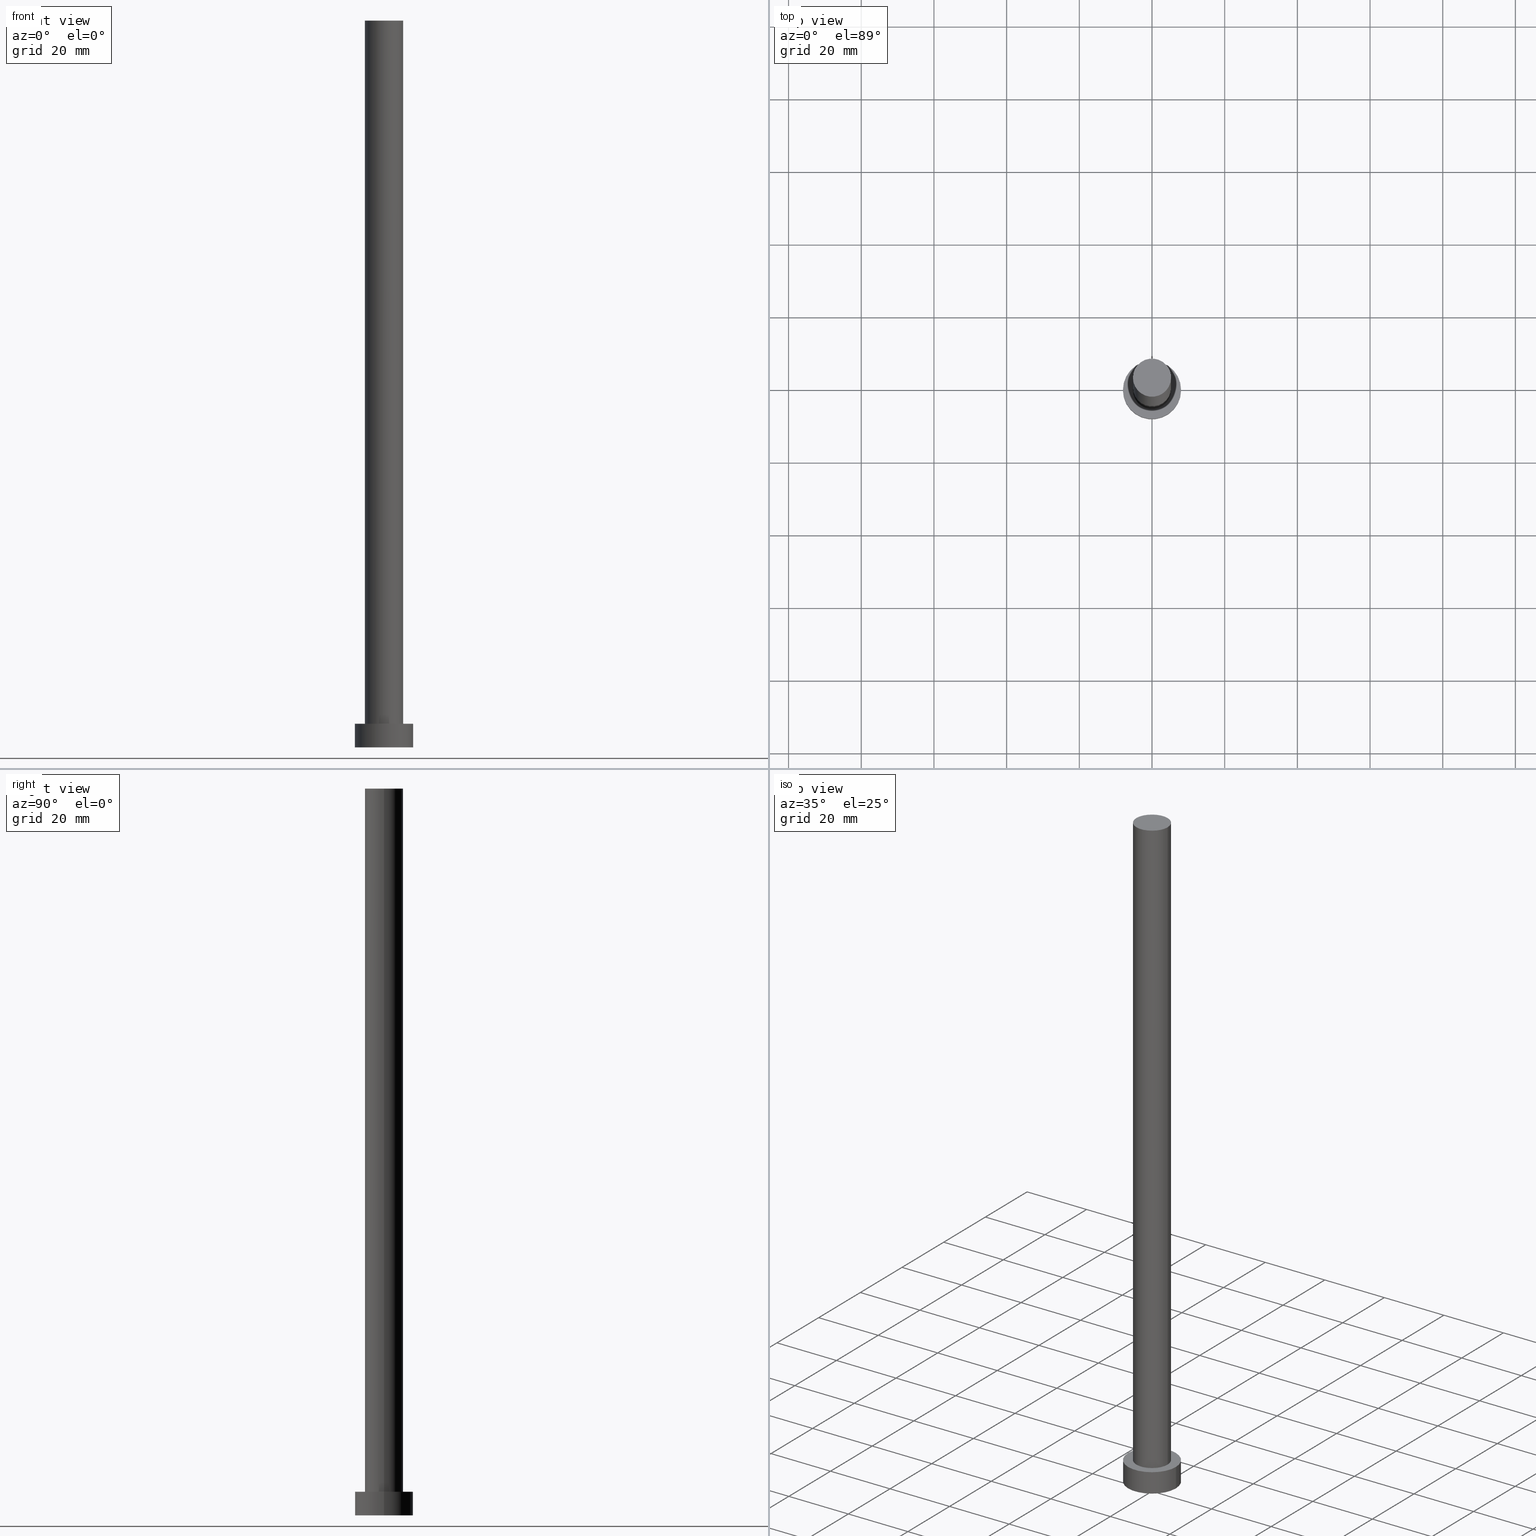
[diagram: canonical four-view strip — front | top / right | iso, engineering-drawing reading convention]
A machine part, canonical four-view strip (front | top / right | iso — engineering-drawing reading convention). The complete STEP part file that produces these views, byte-faithful:
ISO-10303-21;
HEADER;
FILE_DESCRIPTION (( 'STEP AP203' ),
    '1' );
FILE_NAME ('9a54.STEP',
    '2023-02-13T12:22:24',
    ( '' ),
    ( '' ),
    'SwSTEP 2.0',
    'SolidWorks 2019',
    '' );
FILE_SCHEMA (( 'CONFIG_CONTROL_DESIGN' ));
ENDSEC;

DATA;
#1 = PERSON_AND_ORGANIZATION_ROLE ( 'creator' ) ;
#2 = APPLICATION_CONTEXT ( 'configuration controlled 3d designs of mechanical parts and assemblies' ) ;
#3 = CIRCLE ( 'NONE', #24, 5.250000000000000888 ) ;
#4 = CARTESIAN_POINT ( 'NONE',  ( 0.000000000000000000, 0.000000000000000000, 200.0000000000000000 ) ) ;
#5 = VECTOR ( 'NONE', #173, 1000.000000000000000 ) ;
#6 = CYLINDRICAL_SURFACE ( 'NONE', #203, 5.250000000000000888 ) ;
#7 = CC_DESIGN_PERSON_AND_ORGANIZATION_ASSIGNMENT ( #19, #227, ( #123 ) ) ;
#8 = VERTEX_POINT ( 'NONE', #36 ) ;
#9 = CIRCLE ( 'NONE', #59, 8.000000000000000000 ) ;
#10 = DIRECTION ( 'NONE',  ( 0.000000000000000000, 0.000000000000000000, 1.000000000000000000 ) ) ;
#11 = CC_DESIGN_APPROVAL ( #62, ( #155 ) ) ;
#12 = DIRECTION ( 'NONE',  ( 1.000000000000000000, 0.000000000000000000, -0.000000000000000000 ) ) ;
#13 = DIRECTION ( 'NONE',  ( 1.000000000000000000, 0.000000000000000000, -0.000000000000000000 ) ) ;
#14 = CC_DESIGN_DATE_AND_TIME_ASSIGNMENT ( #216, #23, ( #155 ) ) ;
#15 = CARTESIAN_POINT ( 'NONE',  ( -5.250000000000000888, 0.000000000000000000, 6.500000000000000000 ) ) ;
#16 = APPROVAL_PERSON_ORGANIZATION ( #116, #238, #41 ) ;
#17 = LINE ( 'NONE', #250, #5 ) ;
#18 = DIRECTION ( 'NONE',  ( 0.000000000000000000, 0.000000000000000000, 1.000000000000000000 ) ) ;
#19 = PERSON_AND_ORGANIZATION ( #178, #181 ) ;
#20 = CARTESIAN_POINT ( 'NONE',  ( 0.000000000000000000, 0.000000000000000000, 200.0000000000000000 ) ) ;
#21 = PERSON_AND_ORGANIZATION_ROLE ( 'creator' ) ;
#22 = PRODUCT_RELATED_PRODUCT_CATEGORY ( 'detail', '', ( #123 ) ) ;
#23 = DATE_TIME_ROLE ( 'classification_date' ) ;
#24 = AXIS2_PLACEMENT_3D ( 'NONE', #82, #241, #199 ) ;
#25 = APPROVAL_ROLE ( '' ) ;
#26 = ADVANCED_FACE ( 'NONE', ( #156 ), #39, .F. ) ;
#27 = FACE_BOUND ( 'NONE', #240, .T. ) ;
#28 = ORIENTED_EDGE ( 'NONE', *, *, #105, .T. ) ;
#29 = DIRECTION ( 'NONE',  ( -0.000000000000000000, -0.000000000000000000, -1.000000000000000000 ) ) ;
#30 = CC_DESIGN_SECURITY_CLASSIFICATION ( #155, ( #165 ) ) ;
#31 = ORIENTED_EDGE ( 'NONE', *, *, #201, .T. ) ;
#32 = DIRECTION ( 'NONE',  ( 1.000000000000000000, 0.000000000000000000, -0.000000000000000000 ) ) ;
#33 = AXIS2_PLACEMENT_3D ( 'NONE', #70, #255, #233 ) ;
#34 = CARTESIAN_POINT ( 'NONE',  ( 0.000000000000000000, 0.000000000000000000, 200.0000000000000000 ) ) ;
#35 = CC_DESIGN_DATE_AND_TIME_ASSIGNMENT ( #176, #220, ( #215 ) ) ;
#36 = CARTESIAN_POINT ( 'NONE',  ( 8.000000000000000000, 9.797174393178823685E-16, 6.500000000000000000 ) ) ;
#37 = CARTESIAN_POINT ( 'NONE',  ( 0.000000000000000000, 0.000000000000000000, 200.0000000000000000 ) ) ;
#38 = ORIENTED_EDGE ( 'NONE', *, *, #162, .F. ) ;
#39 = PLANE ( 'NONE',  #138 ) ;
#40 = APPROVAL_STATUS ( 'not_yet_approved' ) ;
#41 = APPROVAL_ROLE ( '' ) ;
#42 = PERSON_AND_ORGANIZATION ( #178, #181 ) ;
#43 = DATE_AND_TIME ( #91, #101 ) ;
#44 = CARTESIAN_POINT ( 'NONE',  ( 0.000000000000000000, 0.000000000000000000, 0.000000000000000000 ) ) ;
#45 = AXIS2_PLACEMENT_3D ( 'NONE', #34, #98, #100 ) ;
#46 = ORIENTED_EDGE ( 'NONE', *, *, #160, .T. ) ;
#47 = CARTESIAN_POINT ( 'NONE',  ( 0.000000000000000000, 0.000000000000000000, 6.500000000000000000 ) ) ;
#48 = APPLICATION_PROTOCOL_DEFINITION ( 'international standard', 'config_control_design', 1994, #2 ) ;
#49 = CARTESIAN_POINT ( 'NONE',  ( 8.000000000000000000, 9.797174393178823685E-16, 0.000000000000000000 ) ) ;
#50 = CARTESIAN_POINT ( 'NONE',  ( 5.250000000000000888, 6.429395695523605139E-16, 200.0000000000000000 ) ) ;
#51 = APPROVAL_ROLE ( '' ) ;
#52 = ORIENTED_EDGE ( 'NONE', *, *, #225, .F. ) ;
#53 = CIRCLE ( 'NONE', #193, 8.000000000000000000 ) ;
#54 = COORDINATED_UNIVERSAL_TIME_OFFSET ( 1, 0, .AHEAD. ) ;
#55 = CYLINDRICAL_SURFACE ( 'NONE', #185, 8.000000000000000000 ) ;
#56 =( GEOMETRIC_REPRESENTATION_CONTEXT ( 3 ) GLOBAL_UNCERTAINTY_ASSIGNED_CONTEXT ( ( #244 ) ) GLOBAL_UNIT_ASSIGNED_CONTEXT ( ( #237, #146, #127 ) ) REPRESENTATION_CONTEXT ( 'NONE', 'WORKASPACE' ) );
#57 = COORDINATED_UNIVERSAL_TIME_OFFSET ( 1, 0, .AHEAD. ) ;
#58 = DIRECTION ( 'NONE',  ( -0.000000000000000000, -0.000000000000000000, -1.000000000000000000 ) ) ;
#59 = AXIS2_PLACEMENT_3D ( 'NONE', #171, #132, #69 ) ;
#60 = APPROVAL_DATE_TIME ( #43, #151 ) ;
#61 = ORIENTED_EDGE ( 'NONE', *, *, #219, .T. ) ;
#62 = APPROVAL ( #40, 'NEUR�EN�' ) ;
#63 = ORIENTED_EDGE ( 'NONE', *, *, #248, .T. ) ;
#64 = CARTESIAN_POINT ( 'NONE',  ( 5.250000000000000888, 6.429395695523605139E-16, 6.500000000000000000 ) ) ;
#65 = ORIENTED_EDGE ( 'NONE', *, *, #74, .F. ) ;
#66 = CARTESIAN_POINT ( 'NONE',  ( -8.000000000000000000, 0.000000000000000000, 6.500000000000000000 ) ) ;
#67 = LOCAL_TIME ( 13, 22, 24.00000000000000000, #139 ) ;
#68 = DIRECTION ( 'NONE',  ( 1.000000000000000000, 0.000000000000000000, 0.000000000000000000 ) ) ;
#69 = DIRECTION ( 'NONE',  ( 1.000000000000000000, 0.000000000000000000, 0.000000000000000000 ) ) ;
#70 = CARTESIAN_POINT ( 'NONE',  ( 0.000000000000000000, 0.000000000000000000, 6.500000000000000000 ) ) ;
#71 = CARTESIAN_POINT ( 'NONE',  ( 0.000000000000000000, 0.000000000000000000, 0.000000000000000000 ) ) ;
#72 = CARTESIAN_POINT ( 'NONE',  ( -8.000000000000000000, 0.000000000000000000, 6.500000000000000000 ) ) ;
#73 = EDGE_CURVE ( 'NONE', #99, #249, #168, .T. ) ;
#74 = EDGE_CURVE ( 'NONE', #78, #8, #53, .T. ) ;
#75 = EDGE_LOOP ( 'NONE', ( #224, #242, #63, #150 ) ) ;
#76 = PRODUCT_DEFINITION_SHAPE ( 'NONE', 'NONE',  #215 ) ;
#77 = FACE_OUTER_BOUND ( 'NONE', #161, .T. ) ;
#78 = VERTEX_POINT ( 'NONE', #66 ) ;
#79 = CARTESIAN_POINT ( 'NONE',  ( 0.000000000000000000, 0.000000000000000000, 200.0000000000000000 ) ) ;
#80 = CC_DESIGN_APPROVAL ( #151, ( #215 ) ) ;
#81 = EDGE_CURVE ( 'NONE', #209, #122, #17, .T. ) ;
#82 = CARTESIAN_POINT ( 'NONE',  ( 0.000000000000000000, 0.000000000000000000, 6.500000000000000000 ) ) ;
#83 = EDGE_LOOP ( 'NONE', ( #96, #28 ) ) ;
#84 = EDGE_LOOP ( 'NONE', ( #145, #202, #180, #200 ) ) ;
#85 = APPLICATION_PROTOCOL_DEFINITION ( 'international standard', 'config_control_design', 1994, #107 ) ;
#86 = CYLINDRICAL_SURFACE ( 'NONE', #197, 5.250000000000000888 ) ;
#87 = DIRECTION ( 'NONE',  ( -1.000000000000000000, 0.000000000000000000, 0.000000000000000000 ) ) ;
#88 = DATE_AND_TIME ( #93, #170 ) ;
#89 = DIRECTION ( 'NONE',  ( -0.000000000000000000, -0.000000000000000000, -1.000000000000000000 ) ) ;
#90 = AXIS2_PLACEMENT_3D ( 'NONE', #183, #10, #184 ) ;
#91 = CALENDAR_DATE ( 2023, 13, 2 ) ;
#92 = CIRCLE ( 'NONE', #113, 8.000000000000000000 ) ;
#93 = CALENDAR_DATE ( 2023, 13, 2 ) ;
#94 = PERSON_AND_ORGANIZATION ( #178, #181 ) ;
#95 = CC_DESIGN_PERSON_AND_ORGANIZATION_ASSIGNMENT ( #42, #114, ( #155 ) ) ;
#96 = ORIENTED_EDGE ( 'NONE', *, *, #74, .T. ) ;
#97 = APPROVAL_PERSON_ORGANIZATION ( #94, #62, #25 ) ;
#98 = DIRECTION ( 'NONE',  ( 0.000000000000000000, 0.000000000000000000, 1.000000000000000000 ) ) ;
#99 = VERTEX_POINT ( 'NONE', #231 ) ;
#100 = DIRECTION ( 'NONE',  ( 1.000000000000000000, 0.000000000000000000, 0.000000000000000000 ) ) ;
#101 = LOCAL_TIME ( 13, 22, 24.00000000000000000, #133 ) ;
#102 = ORIENTED_EDGE ( 'NONE', *, *, #162, .T. ) ;
#103 = DIRECTION ( 'NONE',  ( 1.000000000000000000, 0.000000000000000000, 0.000000000000000000 ) ) ;
#104 = DIRECTION ( 'NONE',  ( -0.000000000000000000, -0.000000000000000000, -1.000000000000000000 ) ) ;
#105 = EDGE_CURVE ( 'NONE', #8, #78, #92, .T. ) ;
#106 = CIRCLE ( 'NONE', #45, 5.250000000000000888 ) ;
#107 = APPLICATION_CONTEXT ( 'configuration controlled 3d designs of mechanical parts and assemblies' ) ;
#108 = CYLINDRICAL_SURFACE ( 'NONE', #33, 8.000000000000000000 ) ;
#109 = DIRECTION ( 'NONE',  ( 1.000000000000000000, 0.000000000000000000, 0.000000000000000000 ) ) ;
#110 = EDGE_CURVE ( 'NONE', #78, #144, #157, .T. ) ;
#111 = DIRECTION ( 'NONE',  ( 0.000000000000000000, 0.000000000000000000, 1.000000000000000000 ) ) ;
#112 = DIRECTION ( 'NONE',  ( 0.000000000000000000, 0.000000000000000000, 1.000000000000000000 ) ) ;
#113 = AXIS2_PLACEMENT_3D ( 'NONE', #47, #130, #109 ) ;
#114 = PERSON_AND_ORGANIZATION_ROLE ( 'classification_officer' ) ;
#115 = PERSON_AND_ORGANIZATION ( #178, #181 ) ;
#116 = PERSON_AND_ORGANIZATION ( #178, #181 ) ;
#117 = EDGE_CURVE ( 'NONE', #209, #99, #147, .T. ) ;
#118 = VECTOR ( 'NONE', #226, 1000.000000000000000 ) ;
#119 = DIRECTION ( 'NONE',  ( 1.000000000000000000, 0.000000000000000000, 0.000000000000000000 ) ) ;
#120 = ORIENTED_EDGE ( 'NONE', *, *, #160, .F. ) ;
#121 = DIRECTION ( 'NONE',  ( 0.000000000000000000, 0.000000000000000000, 1.000000000000000000 ) ) ;
#122 = VERTEX_POINT ( 'NONE', #15 ) ;
#123 = PRODUCT ( '9a54', '9a54', '', ( #210 ) ) ;
#124 = DIRECTION ( 'NONE',  ( 0.000000000000000000, 0.000000000000000000, 1.000000000000000000 ) ) ;
#125 = VECTOR ( 'NONE', #228, 1000.000000000000000 ) ;
#126 = APPROVAL_DATE_TIME ( #204, #62 ) ;
#127 =( NAMED_UNIT ( * ) SI_UNIT ( $, .STERADIAN. ) SOLID_ANGLE_UNIT ( ) );
#128 = ORIENTED_EDGE ( 'NONE', *, *, #110, .F. ) ;
#129 = LINE ( 'NONE', #211, #125 ) ;
#130 = DIRECTION ( 'NONE',  ( 0.000000000000000000, 0.000000000000000000, 1.000000000000000000 ) ) ;
#131 = CARTESIAN_POINT ( 'NONE',  ( -8.000000000000000000, 0.000000000000000000, 0.000000000000000000 ) ) ;
#132 = DIRECTION ( 'NONE',  ( 0.000000000000000000, 0.000000000000000000, 1.000000000000000000 ) ) ;
#133 = COORDINATED_UNIVERSAL_TIME_OFFSET ( 1, 0, .AHEAD. ) ;
#134 = DIRECTION ( 'NONE',  ( 1.000000000000000000, 0.000000000000000000, 0.000000000000000000 ) ) ;
#135 = CALENDAR_DATE ( 2023, 13, 2 ) ;
#136 = CARTESIAN_POINT ( 'NONE',  ( 0.000000000000000000, 0.000000000000000000, 6.500000000000000000 ) ) ;
#137 = CIRCLE ( 'NONE', #152, 8.000000000000000000 ) ;
#138 = AXIS2_PLACEMENT_3D ( 'NONE', #71, #18, #13 ) ;
#139 = COORDINATED_UNIVERSAL_TIME_OFFSET ( 1, 0, .AHEAD. ) ;
#140 = LOCAL_TIME ( 13, 22, 24.00000000000000000, #196 ) ;
#141 = ADVANCED_FACE ( 'NONE', ( #191 ), #86, .T. ) ;
#142 = CARTESIAN_POINT ( 'NONE',  ( 0.000000000000000000, 0.000000000000000000, 6.500000000000000000 ) ) ;
#143 = PLANE ( 'NONE',  #247 ) ;
#144 = VERTEX_POINT ( 'NONE', #131 ) ;
#145 = ORIENTED_EDGE ( 'NONE', *, *, #73, .F. ) ;
#146 =( NAMED_UNIT ( * ) PLANE_ANGLE_UNIT ( ) SI_UNIT ( $, .RADIAN. ) );
#147 = CIRCLE ( 'NONE', #148, 5.250000000000000888 ) ;
#148 = AXIS2_PLACEMENT_3D ( 'NONE', #37, #112, #134 ) ;
#149 = DESIGN_CONTEXT ( 'detailed design', #2, 'design' ) ;
#150 = ORIENTED_EDGE ( 'NONE', *, *, #81, .F. ) ;
#151 = APPROVAL ( #229, 'NEUR�EN�' ) ;
#152 = AXIS2_PLACEMENT_3D ( 'NONE', #44, #121, #119 ) ;
#153 = PERSON_AND_ORGANIZATION ( #178, #181 ) ;
#154 = ADVANCED_FACE ( 'NONE', ( #252 ), #108, .T. ) ;
#155 = SECURITY_CLASSIFICATION ( '', '', #218 ) ;
#156 = FACE_OUTER_BOUND ( 'NONE', #239, .T. ) ;
#157 = LINE ( 'NONE', #72, #245 ) ;
#158 = DIRECTION ( 'NONE',  ( -1.000000000000000000, 0.000000000000000000, 0.000000000000000000 ) ) ;
#159 = APPROVAL_STATUS ( 'not_yet_approved' ) ;
#160 = EDGE_CURVE ( 'NONE', #144, #164, #9, .T. ) ;
#161 = EDGE_LOOP ( 'NONE', ( #230, #61 ) ) ;
#162 = EDGE_CURVE ( 'NONE', #8, #164, #129, .T. ) ;
#163 = DIRECTION ( 'NONE',  ( 0.000000000000000000, 0.000000000000000000, 1.000000000000000000 ) ) ;
#164 = VERTEX_POINT ( 'NONE', #49 ) ;
#165 = PRODUCT_DEFINITION_FORMATION_WITH_SPECIFIED_SOURCE ( 'LIBOVOLN�', '', #123, .NOT_KNOWN. ) ;
#166 = FACE_OUTER_BOUND ( 'NONE', #83, .T. ) ;
#167 = CC_DESIGN_PERSON_AND_ORGANIZATION_ASSIGNMENT ( #115, #21, ( #215 ) ) ;
#168 = LINE ( 'NONE', #50, #118 ) ;
#169 = ADVANCED_BREP_SHAPE_REPRESENTATION ( '9a54', ( #222, #188 ), #56 ) ;
#170 = LOCAL_TIME ( 13, 22, 24.00000000000000000, #57 ) ;
#171 = CARTESIAN_POINT ( 'NONE',  ( 0.000000000000000000, 0.000000000000000000, 0.000000000000000000 ) ) ;
#172 = ADVANCED_FACE ( 'NONE', ( #213 ), #6, .T. ) ;
#173 = DIRECTION ( 'NONE',  ( -0.000000000000000000, -0.000000000000000000, -1.000000000000000000 ) ) ;
#174 = APPROVAL_DATE_TIME ( #88, #238 ) ;
#175 = CIRCLE ( 'NONE', #90, 5.250000000000000888 ) ;
#176 = DATE_AND_TIME ( #135, #67 ) ;
#177 = PERSON_AND_ORGANIZATION ( #178, #181 ) ;
#178 = PERSON ( 'NEUR�EN�', 'NEUR�EN�', 'NEUR�EN�', ('NEUR�EN�'), ('NEUR�EN�'), ('NEUR�EN�') ) ;
#179 = PLANE ( 'NONE',  #189 ) ;
#180 = ORIENTED_EDGE ( 'NONE', *, *, #81, .T. ) ;
#181 = ORGANIZATION ( 'NEUR�EN�', 'NEUR�EN�', '' ) ;
#182 = EDGE_LOOP ( 'NONE', ( #214, #102, #31, #128 ) ) ;
#183 = CARTESIAN_POINT ( 'NONE',  ( 0.000000000000000000, 0.000000000000000000, 6.500000000000000000 ) ) ;
#184 = DIRECTION ( 'NONE',  ( 1.000000000000000000, 0.000000000000000000, 0.000000000000000000 ) ) ;
#185 = AXIS2_PLACEMENT_3D ( 'NONE', #136, #29, #223 ) ;
#186 = ADVANCED_FACE ( 'NONE', ( #234 ), #55, .T. ) ;
#187 = CARTESIAN_POINT ( 'NONE',  ( 0.000000000000000000, 0.000000000000000000, 6.500000000000000000 ) ) ;
#188 = AXIS2_PLACEMENT_3D ( 'NONE', #190, #111, #68 ) ;
#189 = AXIS2_PLACEMENT_3D ( 'NONE', #142, #124, #12 ) ;
#190 = CARTESIAN_POINT ( 'NONE',  ( 0.000000000000000000, 0.000000000000000000, 0.000000000000000000 ) ) ;
#191 = FACE_OUTER_BOUND ( 'NONE', #75, .T. ) ;
#192 = CC_DESIGN_PERSON_AND_ORGANIZATION_ASSIGNMENT ( #177, #1, ( #165 ) ) ;
#193 = AXIS2_PLACEMENT_3D ( 'NONE', #187, #246, #103 ) ;
#194 = CALENDAR_DATE ( 2023, 13, 2 ) ;
#195 = ADVANCED_FACE ( 'NONE', ( #77 ), #143, .T. ) ;
#196 = COORDINATED_UNIVERSAL_TIME_OFFSET ( 1, 0, .AHEAD. ) ;
#197 = AXIS2_PLACEMENT_3D ( 'NONE', #20, #104, #87 ) ;
#198 = SHAPE_DEFINITION_REPRESENTATION ( #76, #169 ) ;
#199 = DIRECTION ( 'NONE',  ( 1.000000000000000000, 0.000000000000000000, 0.000000000000000000 ) ) ;
#200 = ORIENTED_EDGE ( 'NONE', *, *, #225, .T. ) ;
#201 = EDGE_CURVE ( 'NONE', #164, #144, #137, .T. ) ;
#202 = ORIENTED_EDGE ( 'NONE', *, *, #117, .F. ) ;
#203 = AXIS2_PLACEMENT_3D ( 'NONE', #4, #58, #158 ) ;
#204 = DATE_AND_TIME ( #207, #140 ) ;
#205 = CARTESIAN_POINT ( 'NONE',  ( -5.250000000000000888, 0.000000000000000000, 200.0000000000000000 ) ) ;
#206 = EDGE_LOOP ( 'NONE', ( #38, #65, #221, #46 ) ) ;
#207 = CALENDAR_DATE ( 2023, 13, 2 ) ;
#208 = ORIENTED_EDGE ( 'NONE', *, *, #248, .F. ) ;
#209 = VERTEX_POINT ( 'NONE', #205 ) ;
#210 = MECHANICAL_CONTEXT ( 'NONE', #107, 'mechanical' ) ;
#211 = CARTESIAN_POINT ( 'NONE',  ( 8.000000000000000000, 9.797174393178823685E-16, 6.500000000000000000 ) ) ;
#212 = CLOSED_SHELL ( 'NONE', ( #141, #186, #154, #251, #26, #172, #195 ) ) ;
#213 = FACE_OUTER_BOUND ( 'NONE', #84, .T. ) ;
#214 = ORIENTED_EDGE ( 'NONE', *, *, #105, .F. ) ;
#215 = PRODUCT_DEFINITION ( 'NEZN�M�', '', #165, #149 ) ;
#216 = DATE_AND_TIME ( #194, #217 ) ;
#217 = LOCAL_TIME ( 13, 22, 24.00000000000000000, #54 ) ;
#218 = SECURITY_CLASSIFICATION_LEVEL ( 'unclassified' ) ;
#219 = EDGE_CURVE ( 'NONE', #99, #209, #106, .T. ) ;
#220 = DATE_TIME_ROLE ( 'creation_date' ) ;
#221 = ORIENTED_EDGE ( 'NONE', *, *, #110, .T. ) ;
#222 = MANIFOLD_SOLID_BREP ( 'P�idat vysunut�m3', #212 ) ;
#223 = DIRECTION ( 'NONE',  ( -1.000000000000000000, 0.000000000000000000, 0.000000000000000000 ) ) ;
#224 = ORIENTED_EDGE ( 'NONE', *, *, #219, .F. ) ;
#225 = EDGE_CURVE ( 'NONE', #122, #249, #175, .T. ) ;
#226 = DIRECTION ( 'NONE',  ( -0.000000000000000000, -0.000000000000000000, -1.000000000000000000 ) ) ;
#227 = PERSON_AND_ORGANIZATION_ROLE ( 'design_owner' ) ;
#228 = DIRECTION ( 'NONE',  ( -0.000000000000000000, -0.000000000000000000, -1.000000000000000000 ) ) ;
#229 = APPROVAL_STATUS ( 'not_yet_approved' ) ;
#230 = ORIENTED_EDGE ( 'NONE', *, *, #117, .T. ) ;
#231 = CARTESIAN_POINT ( 'NONE',  ( 5.250000000000000888, 6.429395695523605139E-16, 200.0000000000000000 ) ) ;
#232 = PERSON_AND_ORGANIZATION_ROLE ( 'design_supplier' ) ;
#233 = DIRECTION ( 'NONE',  ( -1.000000000000000000, 0.000000000000000000, 0.000000000000000000 ) ) ;
#234 = FACE_OUTER_BOUND ( 'NONE', #182, .T. ) ;
#235 = CC_DESIGN_PERSON_AND_ORGANIZATION_ASSIGNMENT ( #254, #232, ( #165 ) ) ;
#236 = APPROVAL_PERSON_ORGANIZATION ( #153, #151, #51 ) ;
#237 =( LENGTH_UNIT ( ) NAMED_UNIT ( * ) SI_UNIT ( .MILLI., .METRE. ) );
#238 = APPROVAL ( #159, 'NEUR�EN�' ) ;
#239 = EDGE_LOOP ( 'NONE', ( #120, #243 ) ) ;
#240 = EDGE_LOOP ( 'NONE', ( #52, #208 ) ) ;
#241 = DIRECTION ( 'NONE',  ( 0.000000000000000000, 0.000000000000000000, 1.000000000000000000 ) ) ;
#242 = ORIENTED_EDGE ( 'NONE', *, *, #73, .T. ) ;
#243 = ORIENTED_EDGE ( 'NONE', *, *, #201, .F. ) ;
#244 = UNCERTAINTY_MEASURE_WITH_UNIT (LENGTH_MEASURE( 1.000000000000000082E-05 ), #237, 'distance_accuracy_value', 'NONE');
#245 = VECTOR ( 'NONE', #89, 1000.000000000000000 ) ;
#246 = DIRECTION ( 'NONE',  ( 0.000000000000000000, 0.000000000000000000, 1.000000000000000000 ) ) ;
#247 = AXIS2_PLACEMENT_3D ( 'NONE', #79, #163, #32 ) ;
#248 = EDGE_CURVE ( 'NONE', #249, #122, #3, .T. ) ;
#249 = VERTEX_POINT ( 'NONE', #64 ) ;
#250 = CARTESIAN_POINT ( 'NONE',  ( -5.250000000000000888, 0.000000000000000000, 200.0000000000000000 ) ) ;
#251 = ADVANCED_FACE ( 'NONE', ( #27, #166 ), #179, .T. ) ;
#252 = FACE_OUTER_BOUND ( 'NONE', #206, .T. ) ;
#253 = CC_DESIGN_APPROVAL ( #238, ( #165 ) ) ;
#254 = PERSON_AND_ORGANIZATION ( #178, #181 ) ;
#255 = DIRECTION ( 'NONE',  ( -0.000000000000000000, -0.000000000000000000, -1.000000000000000000 ) ) ;
ENDSEC;
END-ISO-10303-21;
